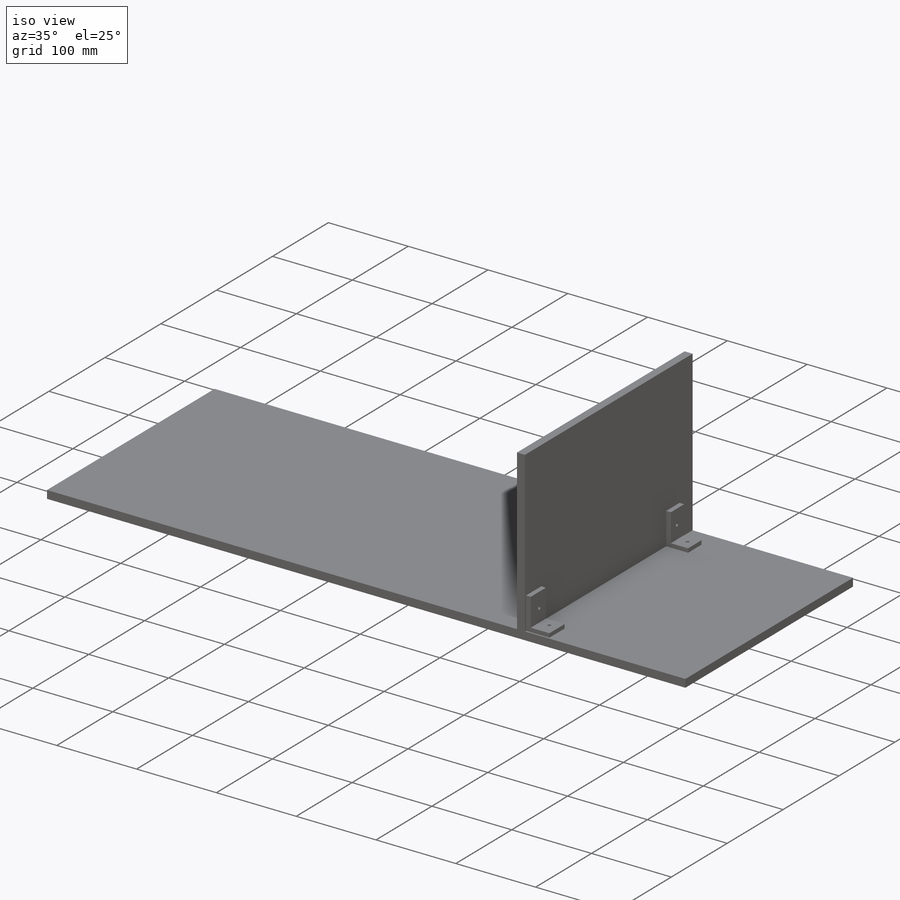
[diagram: iso view]
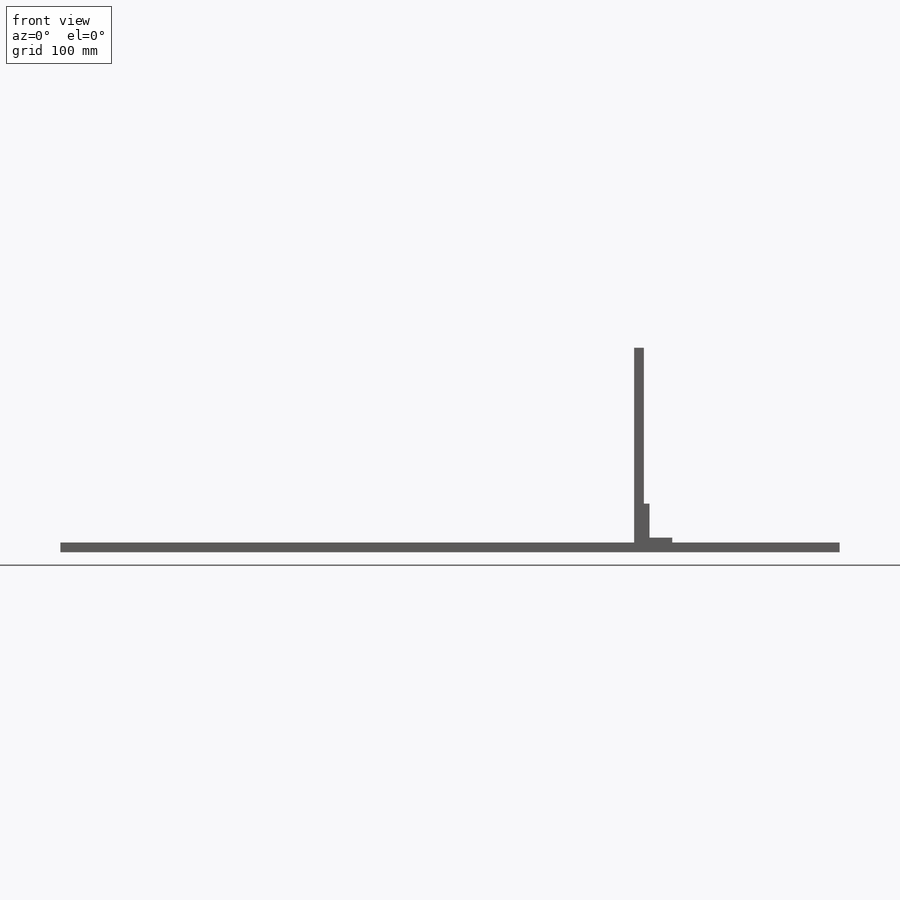
[diagram: front view]
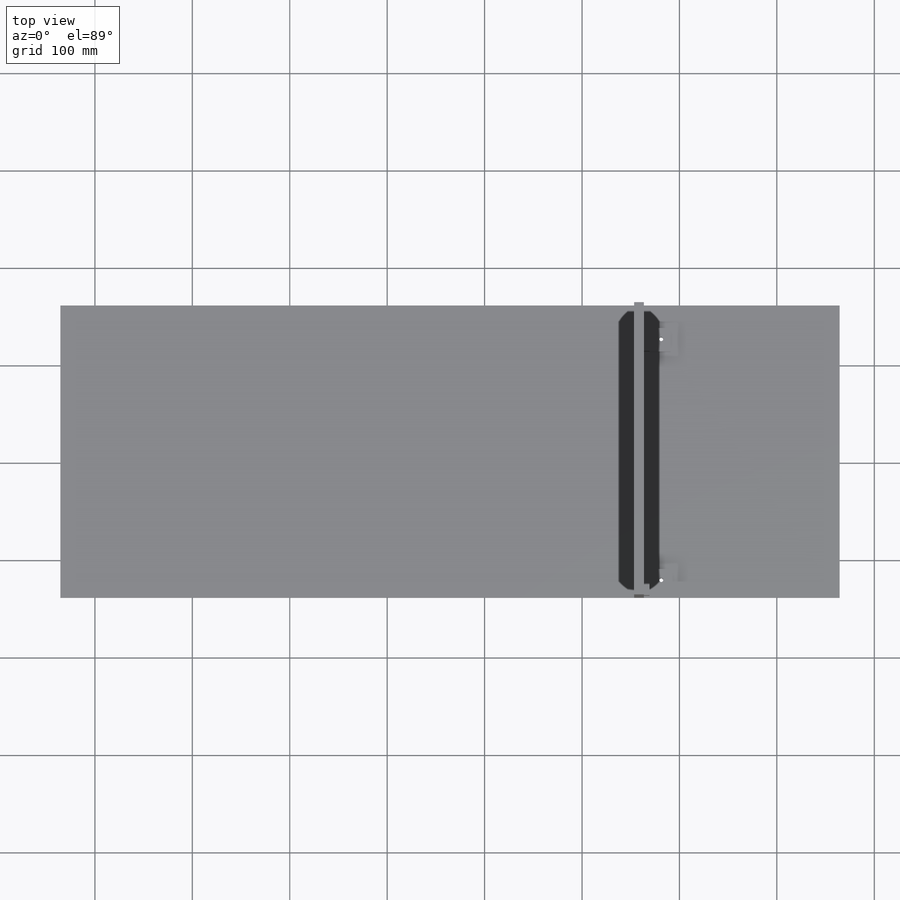
[diagram: top view]
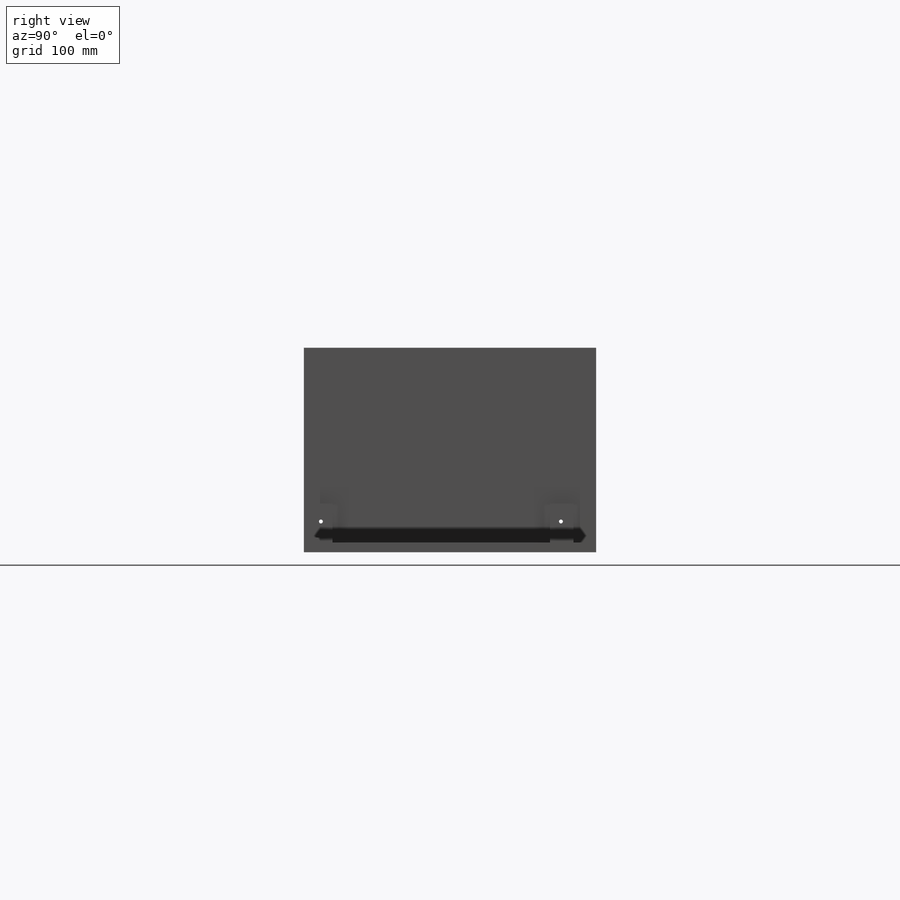
[diagram: right view]
SOLIDWORKS PART (.sldprt)
format: sldprt  version: not decoded by parser v0  size: 376,832 bytes
history: native  units: mm
features: sketch x8, extrude x4, hole x2, material x1 (+13 scaffold rows collapsed)
feature tree (28):
  scaffold x13  (default folders/planes/origin — collapsed)
  material  "Material <not specified>"
  sketch  "Sketch1"  dims[c1.D1=500.0mm c1.D2=300.0mm c2.D1=800.0mm]
  extrude  "Boss-Extrude1"  Depth=10mm
  sketch  "Sketch2"  dims[D1=10.0mm]
  extrude  "Boss-Extrude2"  Depth=200mm
  sketch  "Sketch4"
  extrude  "Boss-Extrude4"  Depth=5mm
  sketch  "Sketch5"
  extrude  "Boss-Extrude5"  Depth=35mm
  hole  "Ø4.0mm Dowel Hole1"  Diameter=4mm Depth=15mm
  sketch  "Sketch8"
  sketch  "Sketch7"  dims[hole-wizard template sketch: 60 standard entries collapsed; hole parameters kept: c18.Thru Hole Depth=15.0mm]
  hole  "Ø4.0mm Dowel Hole2"  Diameter=4mm Depth=604.774557mm
  sketch  "Sketch10"
  sketch  "Sketch9"  dims[hole-wizard template sketch: 60 standard entries collapsed; hole parameters kept: c18.Thru Hole Depth=~604.774557mm]
decode coverage: 10 of 14 modeling features carry decoded parameters
note: ~ marks probable driven/reference dimensions
note: suppression state not decoded; provenance and decode notes live in map.json
